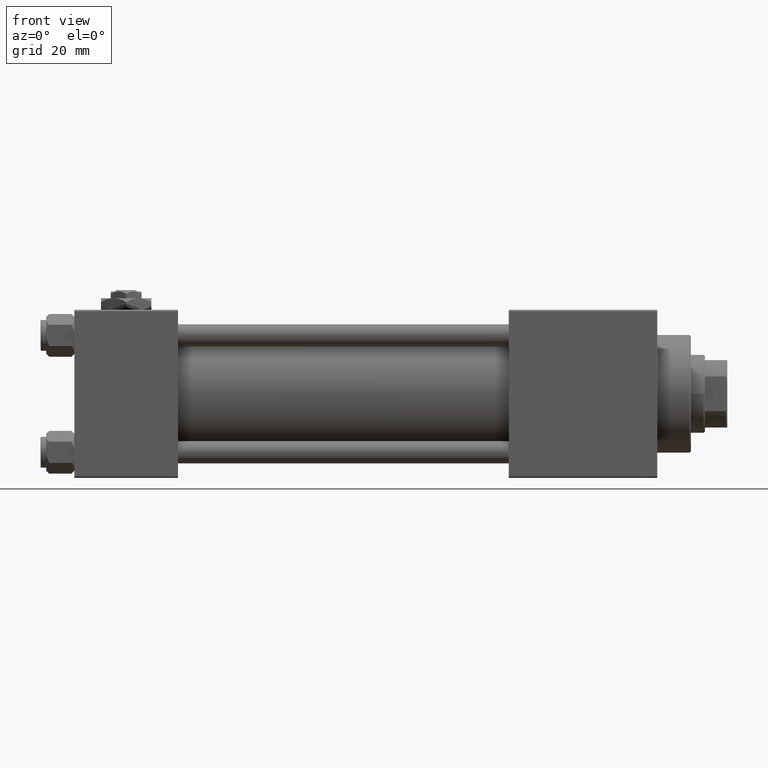
[diagram: clean part render]
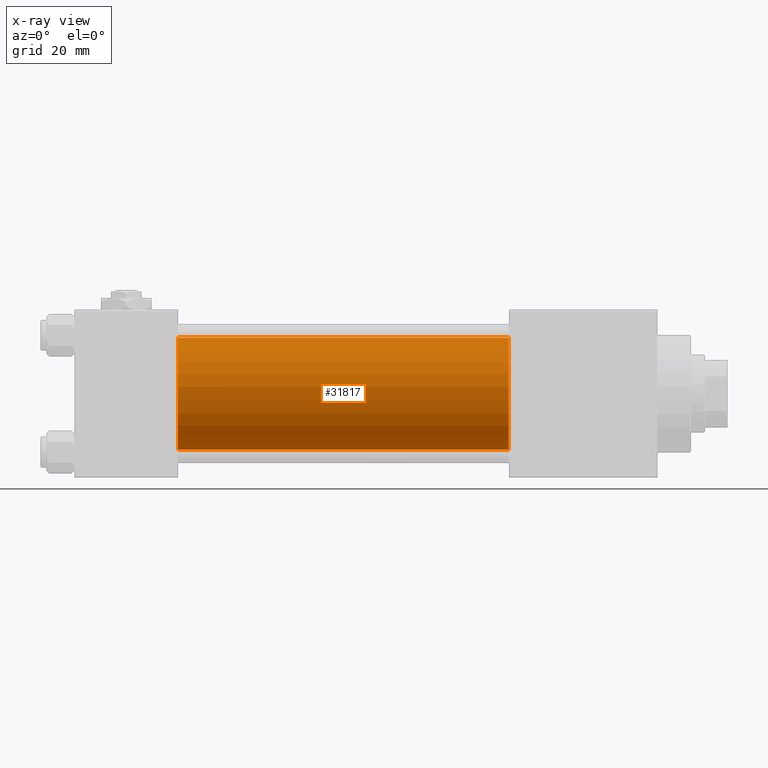
[diagram: x-ray — body ghosted, one internal face saturated and labeled with its STEP entity id]
A machine part, front view, then the same camera in x-ray: the body is ghosted and one INTERNAL B-rep face — a face not visible from any outside direction — is saturated and labeled: STEP entity #31817.
In plain terms, the highlighted cylindrical surface (partial cylindrical patch) has radius 20 mm, axis along (-1, -0, -0).
Its self-contained STEP definition (entity closure, byte-faithful):
#796 = DIRECTION ( 'NONE',  ( 1.000000000000000000, 0.000000000000000000, 0.000000000000000000 ) ) ;
#6683 = VERTEX_POINT ( 'NONE', #17587 ) ;
#7419 = DIRECTION ( 'NONE',  ( -1.000000000000000000, -0.000000000000000000, -0.000000000000000000 ) ) ;
#9446 = DIRECTION ( 'NONE',  ( 0.000000000000000000, 0.000000000000000000, -1.000000000000000000 ) ) ;
#9706 = CARTESIAN_POINT ( 'NONE',  ( 155.0000000000000000, -1.527916156705042519E-16, -20.00000000000000000 ) ) ;
#10758 = CARTESIAN_POINT ( 'NONE',  ( 37.00000000000000000, -2.602085213965210642E-15, 0.000000000000000000 ) ) ;
#10805 = EDGE_LOOP ( 'NONE', ( #41461, #44225, #33547, #19911 ) ) ;
#11083 = VERTEX_POINT ( 'NONE', #49509 ) ;
#11284 = VERTEX_POINT ( 'NONE', #47121 ) ;
#12519 = CYLINDRICAL_SURFACE ( 'NONE', #22366, 20.00000000000000000 ) ;
#13666 = VERTEX_POINT ( 'NONE', #9706 ) ;
#14215 = EDGE_CURVE ( 'NONE', #11284, #13666, #29802, .T. ) ;
#14792 = LINE ( 'NONE', #31336, #49113 ) ;
#15698 = DIRECTION ( 'NONE',  ( 0.000000000000000000, 0.000000000000000000, 1.000000000000000000 ) ) ;
#16222 = DIRECTION ( 'NONE',  ( -1.000000000000000000, -0.000000000000000000, -0.000000000000000000 ) ) ;
#17587 = CARTESIAN_POINT ( 'NONE',  ( 37.00000000000000000, -2.602085213965210642E-15, 20.00000000000000000 ) ) ;
#19911 = ORIENTED_EDGE ( 'NONE', *, *, #24897, .F. ) ;
#20156 = FACE_OUTER_BOUND ( 'NONE', #10805, .T. ) ;
#22366 = AXIS2_PLACEMENT_3D ( 'NONE', #36196, #16222, #15698 ) ;
#23435 = LINE ( 'NONE', #34761, #51953 ) ;
#23440 = CIRCLE ( 'NONE', #33519, 20.00000000000000000 ) ;
#24897 = EDGE_CURVE ( 'NONE', #11284, #6683, #14792, .T. ) ;
#24963 = CARTESIAN_POINT ( 'NONE',  ( 155.0000000000000000, -2.602085213965210642E-15, 0.000000000000000000 ) ) ;
#25173 = DIRECTION ( 'NONE',  ( 1.000000000000000000, 0.000000000000000000, 0.000000000000000000 ) ) ;
#29802 = CIRCLE ( 'NONE', #42296, 20.00000000000000000 ) ;
#31336 = CARTESIAN_POINT ( 'NONE',  ( 155.0000000000000000, -2.602085213965210642E-15, 20.00000000000000000 ) ) ;
#31817 = ADVANCED_FACE ( 'NONE', ( #20156 ), #12519, .F. ) ;
#33519 = AXIS2_PLACEMENT_3D ( 'NONE', #10758, #25173, #48052 ) ;
#33547 = ORIENTED_EDGE ( 'NONE', *, *, #42854, .F. ) ;
#34761 = CARTESIAN_POINT ( 'NONE',  ( 155.0000000000000000, -1.527916156705042519E-16, -20.00000000000000000 ) ) ;
#35014 = DIRECTION ( 'NONE',  ( -1.000000000000000000, -0.000000000000000000, -0.000000000000000000 ) ) ;
#36196 = CARTESIAN_POINT ( 'NONE',  ( 155.0000000000000000, -2.602085213965210642E-15, 0.000000000000000000 ) ) ;
#38575 = EDGE_CURVE ( 'NONE', #13666, #11083, #23435, .T. ) ;
#41461 = ORIENTED_EDGE ( 'NONE', *, *, #14215, .T. ) ;
#42296 = AXIS2_PLACEMENT_3D ( 'NONE', #24963, #796, #9446 ) ;
#42854 = EDGE_CURVE ( 'NONE', #6683, #11083, #23440, .T. ) ;
#44225 = ORIENTED_EDGE ( 'NONE', *, *, #38575, .T. ) ;
#47121 = CARTESIAN_POINT ( 'NONE',  ( 155.0000000000000000, -2.602085213965210642E-15, 20.00000000000000000 ) ) ;
#48052 = DIRECTION ( 'NONE',  ( 0.000000000000000000, 0.000000000000000000, -1.000000000000000000 ) ) ;
#49113 = VECTOR ( 'NONE', #7419, 1000.000000000000000 ) ;
#49509 = CARTESIAN_POINT ( 'NONE',  ( 37.00000000000000000, -1.527916156705042519E-16, -20.00000000000000000 ) ) ;
#51953 = VECTOR ( 'NONE', #35014, 1000.000000000000000 ) ;